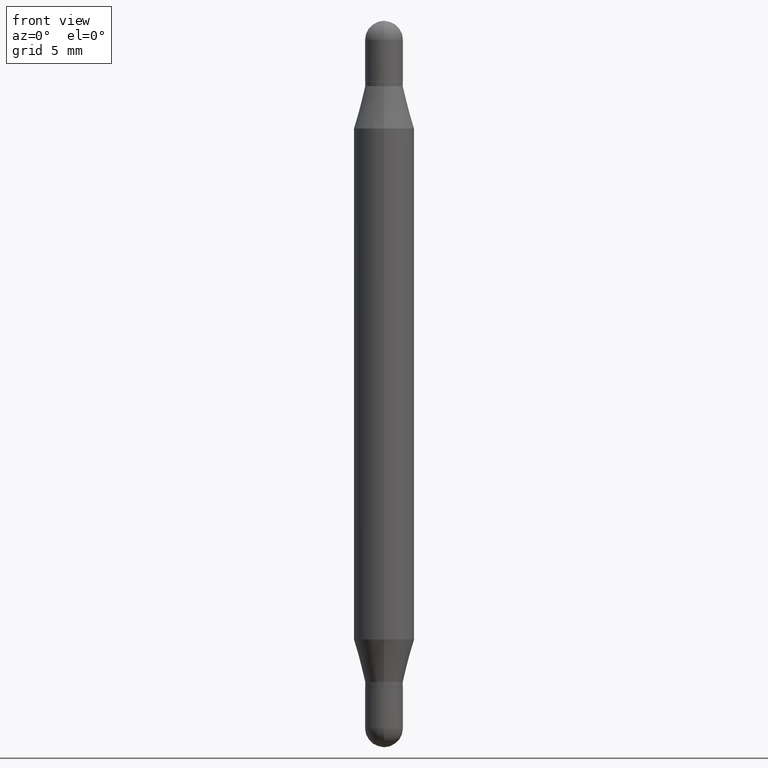
[diagram: clean part render]
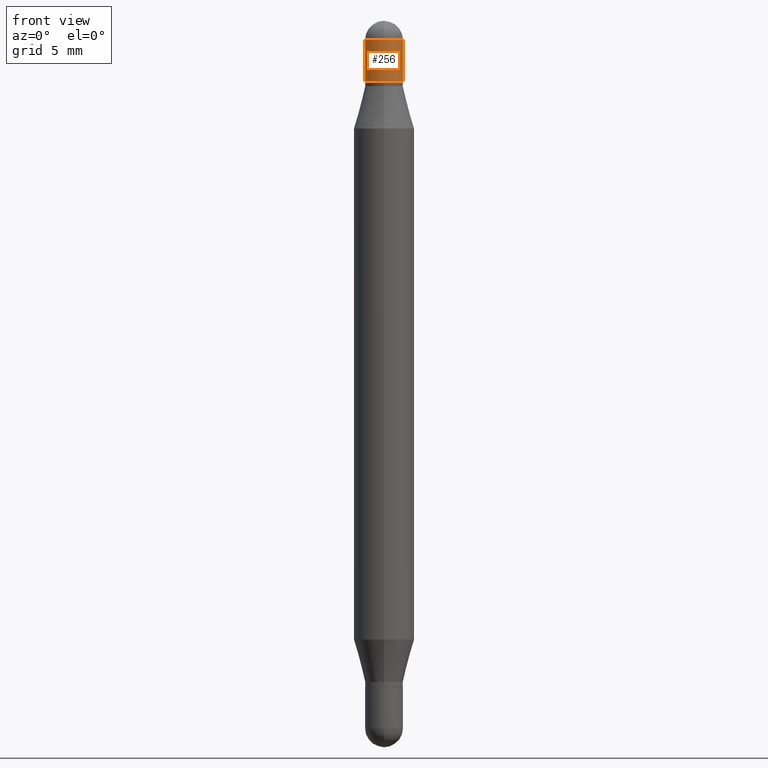
[diagram: same view with one face highlighted and labeled with its STEP entity id]
A machine part, front view. The second image highlights one B-rep face of the part: STEP entity #256.
In plain terms, the highlighted cylindrical surface (edge-blend (fillet) strip) has radius 0.9919 mm, axis along (-0, -0, -1).
Its self-contained STEP definition (entity closure, byte-faithful):
#37 = DIRECTION ( 'NONE',  ( 2.445468806185136597E-29, 3.479614466977828254E-15, 1.000000000000000000 ) ) ;
#39 = CIRCLE ( 'NONE', #334, 0.03905000000000000138 ) ;
#53 = ORIENTED_EDGE ( 'NONE', *, *, #610, .F. ) ;
#109 = LINE ( 'NONE', #539, #115 ) ;
#114 = DIRECTION ( 'NONE',  ( -2.445468806185136597E-29, -3.479614466977828254E-15, -1.000000000000000000 ) ) ;
#115 = VECTOR ( 'NONE', #192, 39.37007874015748143 ) ;
#133 = ORIENTED_EDGE ( 'NONE', *, *, #934, .F. ) ;
#144 = CARTESIAN_POINT ( 'NONE',  ( 3.572707652396175485E-29, -1.447790988344728501E-16, -0.03905000000000023036 ) ) ;
#153 = VERTEX_POINT ( 'NONE', #902 ) ;
#180 = VERTEX_POINT ( 'NONE', #627 ) ;
#191 = ORIENTED_EDGE ( 'NONE', *, *, #428, .T. ) ;
#192 = DIRECTION ( 'NONE',  ( -2.445468806185136877E-29, -3.479614466977828648E-15, -1.000000000000000000 ) ) ;
#198 = CARTESIAN_POINT ( 'NONE',  ( 3.362519608504562821E-29, -4.438519622712169720E-16, -0.1250000000000001665 ) ) ;
#256 = ADVANCED_FACE ( 'NONE', ( #397 ), #889, .T. ) ;
#269 = CIRCLE ( 'NONE', #455, 0.03905000000000000832 ) ;
#312 = DIRECTION ( 'NONE',  ( -2.445468806185136877E-29, -3.479614466977828648E-15, -1.000000000000000000 ) ) ;
#320 = DIRECTION ( 'NONE',  ( 2.445468806185136597E-29, 3.479614466977828254E-15, 1.000000000000000000 ) ) ;
#334 = AXIS2_PLACEMENT_3D ( 'NONE', #198, #793, #807 ) ;
#378 = EDGE_CURVE ( 'NONE', #502, #587, #989, .T. ) ;
#397 = FACE_OUTER_BOUND ( 'NONE', #789, .T. ) ;
#428 = EDGE_CURVE ( 'NONE', #587, #1095, #39, .T. ) ;
#455 = AXIS2_PLACEMENT_3D ( 'NONE', #715, #37, #984 ) ;
#475 = CIRCLE ( 'NONE', #510, 0.03905000000000000832 ) ;
#502 = VERTEX_POINT ( 'NONE', #631 ) ;
#510 = AXIS2_PLACEMENT_3D ( 'NONE', #144, #320, #749 ) ;
#535 = DIRECTION ( 'NONE',  ( 1.000000000000000000, -6.982962677686265133E-15, 0.000000000000000000 ) ) ;
#539 = CARTESIAN_POINT ( 'NONE',  ( 0.03905000000000000832, -5.501006546929380673E-15, -1.500000000000000444 ) ) ;
#587 = VERTEX_POINT ( 'NONE', #677 ) ;
#610 = EDGE_CURVE ( 'NONE', #502, #180, #475, .T. ) ;
#627 = CARTESIAN_POINT ( 'NONE',  ( -2.726846925636134167E-16, -0.03905000000000020954, -0.03905000000000009158 ) ) ;
#631 = CARTESIAN_POINT ( 'NONE',  ( -0.03905000000000000832, -2.641308373986631430E-17, -0.03905000000000023036 ) ) ;
#658 = CARTESIAN_POINT ( 'NONE',  ( -0.03905000000000000832, -4.960419407552753454E-15, -1.500000000000000444 ) ) ;
#662 = ORIENTED_EDGE ( 'NONE', *, *, #378, .T. ) ;
#677 = CARTESIAN_POINT ( 'NONE',  ( -0.03905000000000000138, -2.641308373986664710E-17, -0.1250000000000001665 ) ) ;
#715 = CARTESIAN_POINT ( 'NONE',  ( 3.572707652396175485E-29, -1.447790988344728501E-16, -0.03905000000000023036 ) ) ;
#749 = DIRECTION ( 'NONE',  ( 1.000000000000000000, -6.982962677686265133E-15, 0.000000000000000000 ) ) ;
#756 = CARTESIAN_POINT ( 'NONE',  ( 0.03905000000000000138, -7.165366548348656902E-16, -0.1250000000000001665 ) ) ;
#789 = EDGE_LOOP ( 'NONE', ( #53, #662, #191, #799, #133 ) ) ;
#793 = DIRECTION ( 'NONE',  ( 2.445468806185136597E-29, 3.479614466977828254E-15, 1.000000000000000000 ) ) ;
#795 = AXIS2_PLACEMENT_3D ( 'NONE', #999, #114, #535 ) ;
#799 = ORIENTED_EDGE ( 'NONE', *, *, #912, .F. ) ;
#807 = DIRECTION ( 'NONE',  ( 1.000000000000000000, -6.982962677686266711E-15, 0.000000000000000000 ) ) ;
#816 = VECTOR ( 'NONE', #312, 39.37007874015748143 ) ;
#889 = CYLINDRICAL_SURFACE ( 'NONE', #795, 0.03905000000000000832 ) ;
#902 = CARTESIAN_POINT ( 'NONE',  ( 0.03905000000000000832, -5.670002231164934197E-16, -0.03905000000000023036 ) ) ;
#912 = EDGE_CURVE ( 'NONE', #153, #1095, #109, .T. ) ;
#934 = EDGE_CURVE ( 'NONE', #180, #153, #269, .T. ) ;
#984 = DIRECTION ( 'NONE',  ( 1.000000000000000000, -6.982962677686265133E-15, 0.000000000000000000 ) ) ;
#989 = LINE ( 'NONE', #658, #816 ) ;
#999 = CARTESIAN_POINT ( 'NONE',  ( 0.000000000000000000, -5.228321854365732350E-15, -1.500000000000000444 ) ) ;
#1095 = VERTEX_POINT ( 'NONE', #756 ) ;